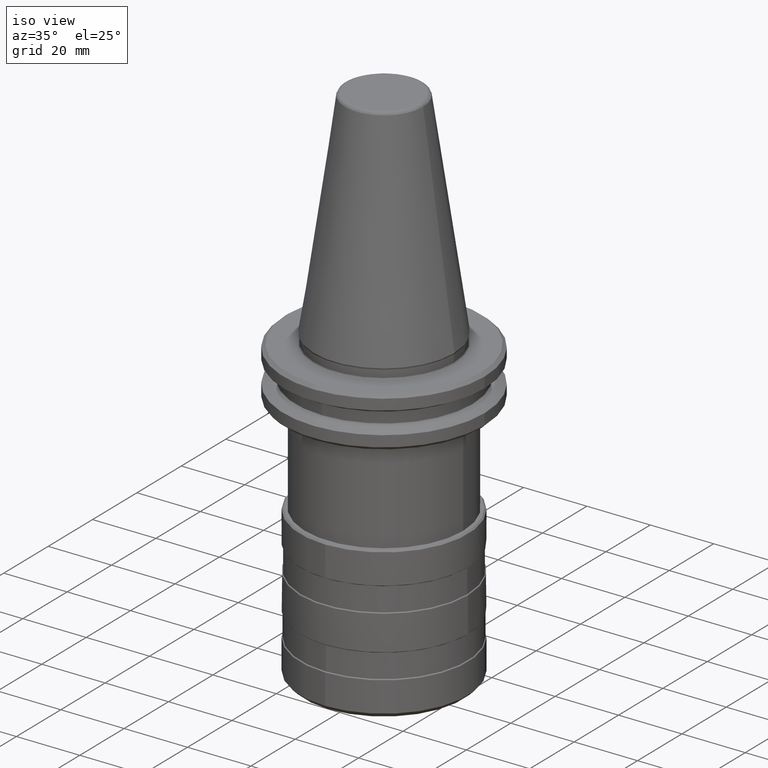
[diagram: clean part render]
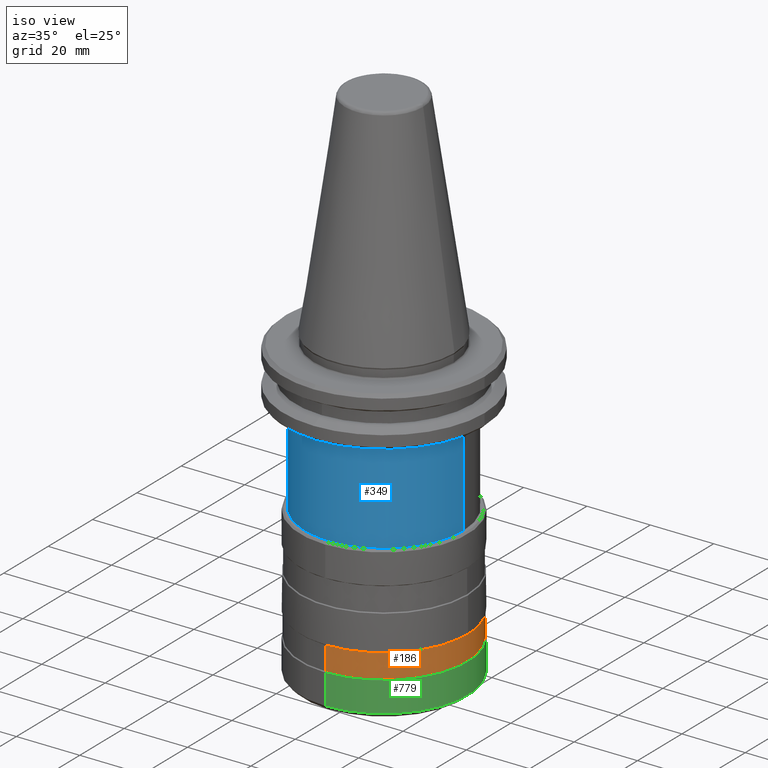
[diagram: same view with three faces highlighted in distinct colors, each labeled with its STEP entity id]
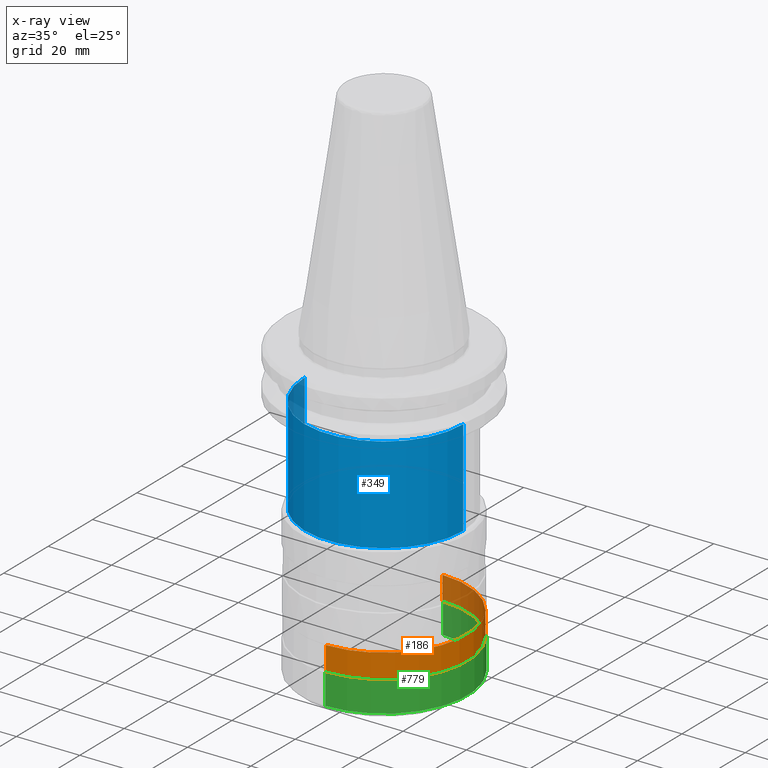
[diagram: x-ray of the same camera — body ghosted, the three highlighted faces saturated]
A machine part, iso view with three faces highlighted in distinct colors.
The next image is the same camera in x-ray (body ghosted, the three faces saturated) — at least one of them is partly hidden behind the body in this view.
Their STEP definitions:

[orange] entity #186 — the highlighted cylindrical surface (partial cylindrical patch) has radius 26.25 mm, axis along (0, -0, 1).
#21 = CARTESIAN_POINT ( 'NONE',  ( -2.142588492777186500E-033, 26.25000000000000400, -86.75000000000000000 ) ) ;
#75 = CARTESIAN_POINT ( 'NONE',  ( 0.0000000000000000000, -4.622231866529366000E-030, -79.24999999999998600 ) ) ;
#177 = EDGE_CURVE ( 'NONE', #1400, #823, #657, .T. ) ;
#186 = ADVANCED_FACE ( 'NONE', ( #703 ), #563, .T. ) ;
#237 = DIRECTION ( 'NONE',  ( 0.0000000000000000000, -1.000000000000000000, -5.286776307738838600E-016 ) ) ;
#384 = AXIS2_PLACEMENT_3D ( 'NONE', #558, #1532, #709 ) ;
#420 = AXIS2_PLACEMENT_3D ( 'NONE', #75, #1139, #237 ) ;
#484 = CARTESIAN_POINT ( 'NONE',  ( 0.0000000000000000000, -26.25000000000001100, -79.25000000000000000 ) ) ;
#558 = CARTESIAN_POINT ( 'NONE',  ( 0.0000000000000000000, -5.502656983963531900E-030, -86.75000000000000000 ) ) ;
#563 = CYLINDRICAL_SURFACE ( 'NONE', #845, 26.25000000000000000 ) ;
#584 = CARTESIAN_POINT ( 'NONE',  ( 0.0000000000000000000, 0.0000000000000000000, -86.75000000000002800 ) ) ;
#589 = CARTESIAN_POINT ( 'NONE',  ( 0.0000000000000000000, -26.25000000000000000, -86.75000000000002800 ) ) ;
#613 = DIRECTION ( 'NONE',  ( 0.0000000000000000000, -2.643388153869420800E-016, 1.000000000000000000 ) ) ;
#622 = VERTEX_POINT ( 'NONE', #1431 ) ;
#657 = LINE ( 'NONE', #589, #1366 ) ;
#670 = DIRECTION ( 'NONE',  ( 0.0000000000000000000, -1.000000000000000000, -5.286776307738840600E-016 ) ) ;
#703 = FACE_OUTER_BOUND ( 'NONE', #1396, .T. ) ;
#709 = DIRECTION ( 'NONE',  ( 0.0000000000000000000, -1.000000000000000000, -5.286776307738840600E-016 ) ) ;
#729 = DIRECTION ( 'NONE',  ( 0.0000000000000000000, -2.643388153869420800E-016, 1.000000000000000000 ) ) ;
#814 = ORIENTED_EDGE ( 'NONE', *, *, #1118, .T. ) ;
#823 = VERTEX_POINT ( 'NONE', #484 ) ;
#845 = AXIS2_PLACEMENT_3D ( 'NONE', #584, #613, #670 ) ;
#911 = VERTEX_POINT ( 'NONE', #21 ) ;
#952 = VECTOR ( 'NONE', #729, 1000.000000000000000 ) ;
#1118 = EDGE_CURVE ( 'NONE', #1400, #911, #1828, .T. ) ;
#1139 = DIRECTION ( 'NONE',  ( 0.0000000000000000000, -2.643388153869420800E-016, 1.000000000000000000 ) ) ;
#1169 = CIRCLE ( 'NONE', #420, 26.25000000000001100 ) ;
#1334 = ORIENTED_EDGE ( 'NONE', *, *, #1764, .T. ) ;
#1359 = LINE ( 'NONE', #1547, #952 ) ;
#1366 = VECTOR ( 'NONE', #1492, 1000.000000000000000 ) ;
#1370 = ORIENTED_EDGE ( 'NONE', *, *, #1660, .F. ) ;
#1396 = EDGE_LOOP ( 'NONE', ( #814, #1334, #1370, #1774 ) ) ;
#1400 = VERTEX_POINT ( 'NONE', #1720 ) ;
#1431 = CARTESIAN_POINT ( 'NONE',  ( 3.214697847761803600E-015, 26.25000000000000700, -79.24999999999998600 ) ) ;
#1492 = DIRECTION ( 'NONE',  ( 0.0000000000000000000, -2.643388153869420800E-016, 1.000000000000000000 ) ) ;
#1532 = DIRECTION ( 'NONE',  ( 0.0000000000000000000, -2.643388153869420800E-016, 1.000000000000000000 ) ) ;
#1547 = CARTESIAN_POINT ( 'NONE',  ( 3.214697847761802000E-015, 26.25000000000000000, -86.75000000000001400 ) ) ;
#1660 = EDGE_CURVE ( 'NONE', #823, #622, #1169, .T. ) ;
#1720 = CARTESIAN_POINT ( 'NONE',  ( 3.230005932751143900E-015, -26.25000000000000400, -86.75000000000000000 ) ) ;
#1764 = EDGE_CURVE ( 'NONE', #911, #622, #1359, .T. ) ;
#1774 = ORIENTED_EDGE ( 'NONE', *, *, #177, .F. ) ;
#1828 = CIRCLE ( 'NONE', #384, 26.25000000000000000 ) ;

[blue] entity #349 — the highlighted cylindrical surface (partial cylindrical patch) has radius 25 mm, axis along (0, 0, 1).
#46 = CARTESIAN_POINT ( 'NONE',  ( -25.00000000000000000, 3.061616997868383000E-015, -19.59999999971363800 ) ) ;
#61 = LINE ( 'NONE', #1634, #838 ) ;
#182 = EDGE_CURVE ( 'NONE', #987, #1306, #998, .T. ) ;
#193 = VECTOR ( 'NONE', #1331, 1000.000000000000000 ) ;
#200 = EDGE_CURVE ( 'NONE', #1306, #984, #908, .T. ) ;
#280 = ORIENTED_EDGE ( 'NONE', *, *, #200, .T. ) ;
#319 = CYLINDRICAL_SURFACE ( 'NONE', #604, 25.00000000000000000 ) ;
#328 = DIRECTION ( 'NONE',  ( -1.000000000000000000, 0.0000000000000000000, 0.0000000000000000000 ) ) ;
#349 = ADVANCED_FACE ( 'NONE', ( #1506 ), #319, .T. ) ;
#369 = CARTESIAN_POINT ( 'NONE',  ( 25.00000000000000000, 0.0000000000000000000, -50.00000000000000000 ) ) ;
#373 = DIRECTION ( 'NONE',  ( 1.000000000000000000, 0.0000000000000000000, 0.0000000000000000000 ) ) ;
#428 = CARTESIAN_POINT ( 'NONE',  ( 0.0000000000000000000, 0.0000000000000000000, -50.00000000000000000 ) ) ;
#532 = CARTESIAN_POINT ( 'NONE',  ( -25.00000000000000000, 3.061616997868383000E-015, -50.00000000000000000 ) ) ;
#549 = AXIS2_PLACEMENT_3D ( 'NONE', #1361, #1051, #328 ) ;
#574 = CARTESIAN_POINT ( 'NONE',  ( 25.00000000000000000, 0.0000000000000000000, -50.00000000000000000 ) ) ;
#604 = AXIS2_PLACEMENT_3D ( 'NONE', #1242, #1187, #753 ) ;
#738 = EDGE_CURVE ( 'NONE', #1010, #987, #1441, .T. ) ;
#753 = DIRECTION ( 'NONE',  ( 1.000000000000000000, 0.0000000000000000000, 0.0000000000000000000 ) ) ;
#830 = AXIS2_PLACEMENT_3D ( 'NONE', #428, #1780, #373 ) ;
#838 = VECTOR ( 'NONE', #972, 1000.000000000000000 ) ;
#908 = CIRCLE ( 'NONE', #549, 25.00000000000000000 ) ;
#972 = DIRECTION ( 'NONE',  ( 0.0000000000000000000, 0.0000000000000000000, 1.000000000000000000 ) ) ;
#984 = VERTEX_POINT ( 'NONE', #46 ) ;
#987 = VERTEX_POINT ( 'NONE', #369 ) ;
#998 = LINE ( 'NONE', #574, #193 ) ;
#1010 = VERTEX_POINT ( 'NONE', #532 ) ;
#1051 = DIRECTION ( 'NONE',  ( -0.0000000000000000000, -0.0000000000000000000, -1.000000000000000000 ) ) ;
#1108 = ORIENTED_EDGE ( 'NONE', *, *, #182, .T. ) ;
#1187 = DIRECTION ( 'NONE',  ( 0.0000000000000000000, 0.0000000000000000000, 1.000000000000000000 ) ) ;
#1191 = ORIENTED_EDGE ( 'NONE', *, *, #738, .T. ) ;
#1242 = CARTESIAN_POINT ( 'NONE',  ( 0.0000000000000000000, 0.0000000000000000000, -50.00000000000000000 ) ) ;
#1306 = VERTEX_POINT ( 'NONE', #1567 ) ;
#1331 = DIRECTION ( 'NONE',  ( 0.0000000000000000000, 0.0000000000000000000, 1.000000000000000000 ) ) ;
#1361 = CARTESIAN_POINT ( 'NONE',  ( 0.0000000000000000000, 0.0000000000000000000, -19.59999999971363800 ) ) ;
#1441 = CIRCLE ( 'NONE', #830, 25.00000000000000000 ) ;
#1470 = EDGE_LOOP ( 'NONE', ( #1495, #1191, #1108, #280 ) ) ;
#1495 = ORIENTED_EDGE ( 'NONE', *, *, #1544, .F. ) ;
#1506 = FACE_OUTER_BOUND ( 'NONE', #1470, .T. ) ;
#1544 = EDGE_CURVE ( 'NONE', #1010, #984, #61, .T. ) ;
#1567 = CARTESIAN_POINT ( 'NONE',  ( 25.00000000000000000, 0.0000000000000000000, -19.59999999971363800 ) ) ;
#1634 = CARTESIAN_POINT ( 'NONE',  ( -25.00000000000000000, 3.061616997868383000E-015, -50.00000000000000000 ) ) ;
#1780 = DIRECTION ( 'NONE',  ( 0.0000000000000000000, 0.0000000000000000000, 1.000000000000000000 ) ) ;

[green] entity #779 — the highlighted cylindrical surface (partial cylindrical patch) has radius 26.5 mm, axis along (0, -0, 1).
#40 = EDGE_CURVE ( 'NONE', #977, #443, #752, .T. ) ;
#79 = DIRECTION ( 'NONE',  ( 0.0000000000000000000, -1.000000000000000000, -5.236901059552625500E-016 ) ) ;
#130 = DIRECTION ( 'NONE',  ( 0.0000000000000000000, -1.000000000000000000, -5.236901059552625500E-016 ) ) ;
#131 = DIRECTION ( 'NONE',  ( 0.0000000000000000000, -2.618450529776313200E-016, 1.000000000000000000 ) ) ;
#140 = CARTESIAN_POINT ( 'NONE',  ( 0.0000000000000000000, 0.0000000000000000000, -96.50000000000000000 ) ) ;
#249 = CARTESIAN_POINT ( 'NONE',  ( 3.245314017740485800E-015, 26.50000000000000000, -96.49999999999998600 ) ) ;
#257 = CARTESIAN_POINT ( 'NONE',  ( 0.0000000000000000000, 5.450745125624254000E-030, -96.50000000000002800 ) ) ;
#273 = EDGE_CURVE ( 'NONE', #877, #503, #462, .T. ) ;
#439 = CARTESIAN_POINT ( 'NONE',  ( 0.0000000000000000000, -26.50000000000000000, -96.50000000000001400 ) ) ;
#443 = VERTEX_POINT ( 'NONE', #486 ) ;
#462 = CIRCLE ( 'NONE', #796, 26.50000000000000400 ) ;
#486 = CARTESIAN_POINT ( 'NONE',  ( 3.245314017740491700E-015, 26.49999999999995400, -96.50000000000002800 ) ) ;
#503 = VERTEX_POINT ( 'NONE', #831 ) ;
#659 = AXIS2_PLACEMENT_3D ( 'NONE', #140, #131, #130 ) ;
#695 = ORIENTED_EDGE ( 'NONE', *, *, #1329, .F. ) ;
#752 = CIRCLE ( 'NONE', #1247, 26.50000000000000000 ) ;
#779 = ADVANCED_FACE ( 'NONE', ( #1043 ), #1363, .T. ) ;
#796 = AXIS2_PLACEMENT_3D ( 'NONE', #1397, #900, #1307 ) ;
#831 = CARTESIAN_POINT ( 'NONE',  ( 3.245314017740486600E-015, 26.50000000000000400, -87.00000000000001400 ) ) ;
#877 = VERTEX_POINT ( 'NONE', #1606 ) ;
#900 = DIRECTION ( 'NONE',  ( -0.0000000000000000000, -2.643388153869420800E-016, 1.000000000000000000 ) ) ;
#977 = VERTEX_POINT ( 'NONE', #1376 ) ;
#1041 = LINE ( 'NONE', #249, #1703 ) ;
#1043 = FACE_OUTER_BOUND ( 'NONE', #1747, .T. ) ;
#1110 = ORIENTED_EDGE ( 'NONE', *, *, #273, .F. ) ;
#1148 = DIRECTION ( 'NONE',  ( 0.0000000000000000000, -2.618450529776313200E-016, 1.000000000000000000 ) ) ;
#1160 = EDGE_CURVE ( 'NONE', #443, #503, #1041, .T. ) ;
#1247 = AXIS2_PLACEMENT_3D ( 'NONE', #257, #1511, #79 ) ;
#1264 = ORIENTED_EDGE ( 'NONE', *, *, #1160, .T. ) ;
#1307 = DIRECTION ( 'NONE',  ( 0.0000000000000000000, 1.000000000000000000, 5.236901059552624500E-016 ) ) ;
#1329 = EDGE_CURVE ( 'NONE', #977, #877, #1853, .T. ) ;
#1363 = CYLINDRICAL_SURFACE ( 'NONE', #659, 26.50000000000000000 ) ;
#1376 = CARTESIAN_POINT ( 'NONE',  ( 7.267660167499004400E-030, -26.49999999999996800, -96.50000000000002800 ) ) ;
#1397 = CARTESIAN_POINT ( 'NONE',  ( 0.0000000000000000000, 6.608470384673373300E-017, -87.00000000000002800 ) ) ;
#1505 = VECTOR ( 'NONE', #1705, 1000.000000000000000 ) ;
#1511 = DIRECTION ( 'NONE',  ( 0.0000000000000000000, -2.618450529776313200E-016, 1.000000000000000000 ) ) ;
#1606 = CARTESIAN_POINT ( 'NONE',  ( 0.0000000000000000000, -26.50000000000000400, -87.00000000000004300 ) ) ;
#1703 = VECTOR ( 'NONE', #1148, 1000.000000000000000 ) ;
#1705 = DIRECTION ( 'NONE',  ( 0.0000000000000000000, -2.618450529776313200E-016, 1.000000000000000000 ) ) ;
#1747 = EDGE_LOOP ( 'NONE', ( #1795, #1264, #1110, #695 ) ) ;
#1795 = ORIENTED_EDGE ( 'NONE', *, *, #40, .T. ) ;
#1853 = LINE ( 'NONE', #439, #1505 ) ;